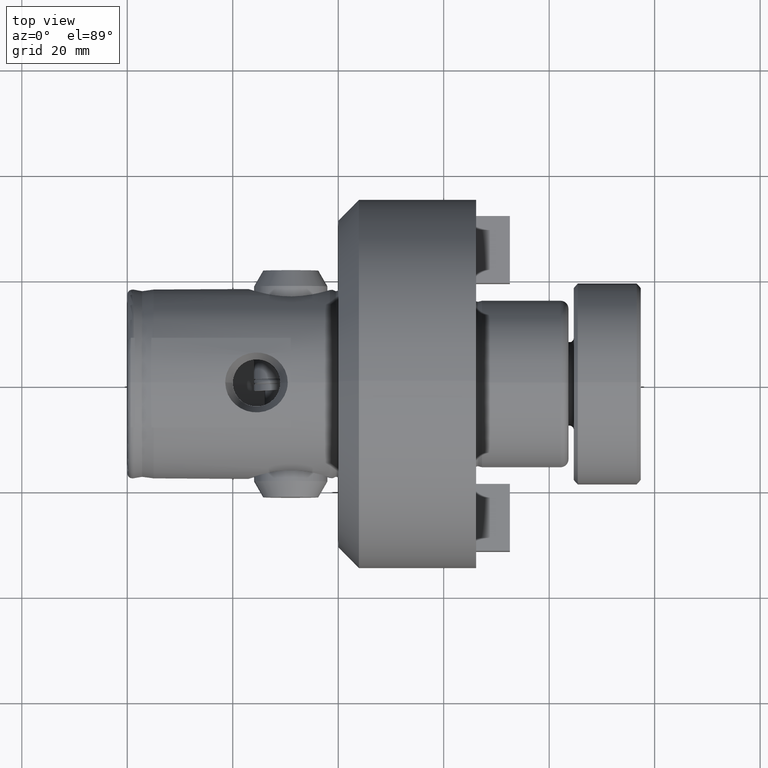
[diagram: clean part render]
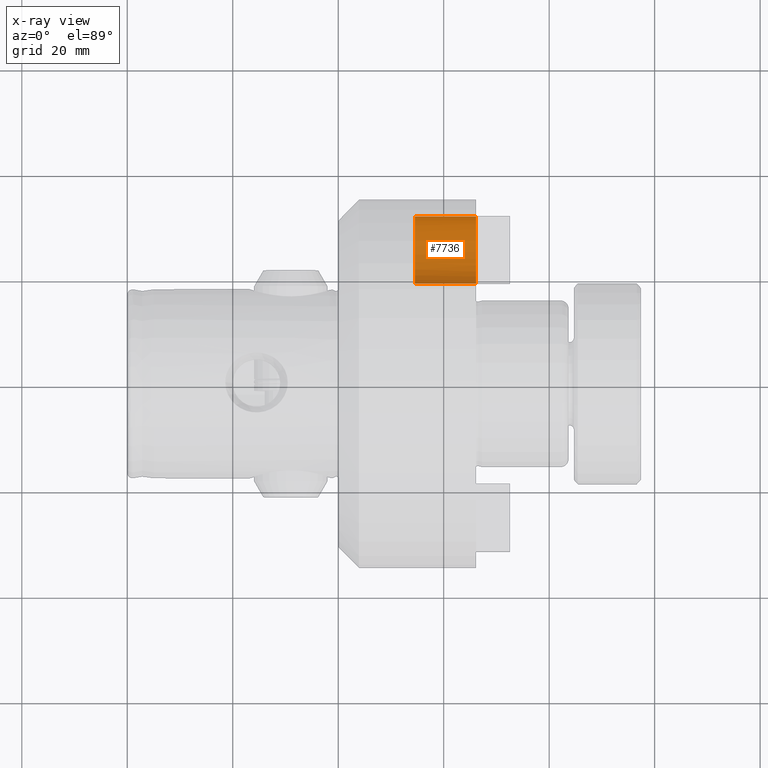
[diagram: x-ray — body ghosted, one internal face saturated and labeled with its STEP entity id]
A machine part, top view, then the same camera in x-ray: the body is ghosted and one INTERNAL B-rep face — a face not visible from any outside direction — is saturated and labeled: STEP entity #7736.
In plain terms, the highlighted cylindrical surface (edge-blend (fillet) strip) has radius 6.3538 mm, axis along (1, -0, 0).
Its self-contained STEP definition (entity closure, byte-faithful):
#33 = ORIENTED_EDGE ( 'NONE', *, *, #8296, .F. ) ;
#367 = ORIENTED_EDGE ( 'NONE', *, *, #2696, .F. ) ;
#423 = AXIS2_PLACEMENT_3D ( 'NONE', #2714, #7398, #662 ) ;
#500 = VECTOR ( 'NONE', #3384, 1000.000000000000000 ) ;
#662 = DIRECTION ( 'NONE',  ( 0.0000000000000000000, 0.0000000000000000000, -1.000000000000000000 ) ) ;
#818 = CARTESIAN_POINT ( 'NONE',  ( 0.0000000000000000000, 6.349999999999999600, 0.07333448188494989800 ) ) ;
#997 = VERTEX_POINT ( 'NONE', #4131 ) ;
#1070 = DIRECTION ( 'NONE',  ( 0.0000000000000000000, 0.0000000000000000000, -1.000000000000000000 ) ) ;
#1111 = CARTESIAN_POINT ( 'NONE',  ( 0.0000000000000000000, 0.2200034456548826400, 6.349999999999998800 ) ) ;
#1304 = AXIS2_PLACEMENT_3D ( 'NONE', #5554, #6228, #2196 ) ;
#1333 = VERTEX_POINT ( 'NONE', #5748 ) ;
#1340 = CARTESIAN_POINT ( 'NONE',  ( 0.0000000000000000000, 0.07333448188493543700, -6.350000000000001400 ) ) ;
#1423 = CARTESIAN_POINT ( 'NONE',  ( 0.0000000000000000000, 6.349999999999999600, -0.2200034456548535800 ) ) ;
#1465 = AXIS2_PLACEMENT_3D ( 'NONE', #7080, #3758, #1070 ) ;
#1625 = CIRCLE ( 'NONE', #4684, 6.353810000000000200 ) ;
#2103 = EDGE_LOOP ( 'NONE', ( #5069, #8022, #367, #33, #5548, #2463, #5312, #6392 ) ) ;
#2196 = DIRECTION ( 'NONE',  ( 0.0000000000000000000, 0.0000000000000000000, -1.000000000000000000 ) ) ;
#2463 = ORIENTED_EDGE ( 'NONE', *, *, #3312, .F. ) ;
#2609 = B_SPLINE_CURVE_WITH_KNOTS ( 'NONE', 3,
 ( #4111, #4826, #818, #4798 ),
 .UNSPECIFIED., .F., .F.,
 ( 4, 4 ),
 ( 0.0000000000000000000, 1.000000000000000000 ),
 .UNSPECIFIED. ) ;
#2674 = VERTEX_POINT ( 'NONE', #8041 ) ;
#2696 = EDGE_CURVE ( 'NONE', #5825, #5606, #4153, .T. ) ;
#2714 = CARTESIAN_POINT ( 'NONE',  ( 0.0000000000000000000, 0.0000000000000000000, 0.0000000000000000000 ) ) ;
#2819 = VERTEX_POINT ( 'NONE', #1423 ) ;
#3073 = EDGE_CURVE ( 'NONE', #2819, #997, #2609, .T. ) ;
#3219 = LINE ( 'NONE', #5382, #500 ) ;
#3312 = EDGE_CURVE ( 'NONE', #4306, #2819, #5968, .T. ) ;
#3327 = DIRECTION ( 'NONE',  ( 1.000000000000000000, 0.0000000000000000000, 0.0000000000000000000 ) ) ;
#3384 = DIRECTION ( 'NONE',  ( 1.000000000000000000, 0.0000000000000000000, 0.0000000000000000000 ) ) ;
#3568 = DIRECTION ( 'NONE',  ( 0.0000000000000000000, 0.0000000000000000000, -1.000000000000000000 ) ) ;
#3758 = DIRECTION ( 'NONE',  ( 1.000000000000000000, 0.0000000000000000000, 0.0000000000000000000 ) ) ;
#3896 = CARTESIAN_POINT ( 'NONE',  ( 0.0000000000000000000, 0.2200034456548826400, 6.349999999999998800 ) ) ;
#3930 = CARTESIAN_POINT ( 'NONE',  ( 0.0000000000000000000, 0.1466689637699220300, 6.349999999999998800 ) ) ;
#4068 = CARTESIAN_POINT ( 'NONE',  ( -11.60223969504521300, 0.0000000000000000000, -6.353810000000000200 ) ) ;
#4111 = CARTESIAN_POINT ( 'NONE',  ( 0.0000000000000000000, 6.349999999999999600, -0.2200034456548535800 ) ) ;
#4131 = CARTESIAN_POINT ( 'NONE',  ( 0.0000000000000000000, 6.349999999999999600, 0.2200034456548518300 ) ) ;
#4153 = B_SPLINE_CURVE_WITH_KNOTS ( 'NONE', 3,
 ( #3896, #3930, #7341, #8642 ),
 .UNSPECIFIED., .F., .F.,
 ( 4, 4 ),
 ( 0.0000000000000000000, 0.4999999999999962800 ),
 .UNSPECIFIED. ) ;
#4306 = VERTEX_POINT ( 'NONE', #7247 ) ;
#4631 = LINE ( 'NONE', #5380, #8380 ) ;
#4684 = AXIS2_PLACEMENT_3D ( 'NONE', #5648, #7586, #3568 ) ;
#4798 = CARTESIAN_POINT ( 'NONE',  ( 0.0000000000000000000, 6.349999999999999600, 0.2200034456548518300 ) ) ;
#4819 = CARTESIAN_POINT ( 'NONE',  ( 0.0000000000000000000, 0.1466689637698717400, -6.350000000000001400 ) ) ;
#4826 = CARTESIAN_POINT ( 'NONE',  ( 0.0000000000000000000, 6.349999999999999600, -0.07333448188495163300 ) ) ;
#5069 = ORIENTED_EDGE ( 'NONE', *, *, #6811, .T. ) ;
#5312 = ORIENTED_EDGE ( 'NONE', *, *, #5567, .F. ) ;
#5380 = CARTESIAN_POINT ( 'NONE',  ( -13.66520000000000000, 0.0000000000000000000, -6.353810000000000200 ) ) ;
#5382 = CARTESIAN_POINT ( 'NONE',  ( -13.66520000000000000, 7.781173078890445100E-016, 6.353810000000000200 ) ) ;
#5444 = B_SPLINE_CURVE_WITH_KNOTS ( 'NONE', 3,
 ( #6662, #1340, #4819, #5489 ),
 .UNSPECIFIED., .F., .F.,
 ( 4, 4 ),
 ( 0.4999999999999940600, 1.000000000000000000 ),
 .UNSPECIFIED. ) ;
#5456 = EDGE_CURVE ( 'NONE', #1333, #5606, #3219, .T. ) ;
#5486 = CIRCLE ( 'NONE', #423, 6.353810000000000200 ) ;
#5489 = CARTESIAN_POINT ( 'NONE',  ( 0.0000000000000000000, 0.2200034456548082600, -6.350000000000001400 ) ) ;
#5548 = ORIENTED_EDGE ( 'NONE', *, *, #3073, .F. ) ;
#5554 = CARTESIAN_POINT ( 'NONE',  ( -13.66520000000000000, 0.0000000000000000000, 0.0000000000000000000 ) ) ;
#5567 = EDGE_CURVE ( 'NONE', #2674, #4306, #5444, .T. ) ;
#5606 = VERTEX_POINT ( 'NONE', #7481 ) ;
#5648 = CARTESIAN_POINT ( 'NONE',  ( -11.60223969504521300, 0.0000000000000000000, 0.0000000000000000000 ) ) ;
#5748 = CARTESIAN_POINT ( 'NONE',  ( -11.60223969504521300, 7.781173078890445100E-016, 6.353810000000000200 ) ) ;
#5801 = CYLINDRICAL_SURFACE ( 'NONE', #1304, 6.353810000000000200 ) ;
#5825 = VERTEX_POINT ( 'NONE', #1111 ) ;
#5968 = CIRCLE ( 'NONE', #1465, 6.353810000000000200 ) ;
#6228 = DIRECTION ( 'NONE',  ( 1.000000000000000000, 0.0000000000000000000, 0.0000000000000000000 ) ) ;
#6392 = ORIENTED_EDGE ( 'NONE', *, *, #8336, .F. ) ;
#6662 = CARTESIAN_POINT ( 'NONE',  ( 0.0000000000000000000, -8.745650037500495400E-016, -6.351905000000001200 ) ) ;
#6774 = VERTEX_POINT ( 'NONE', #4068 ) ;
#6811 = EDGE_CURVE ( 'NONE', #6774, #1333, #1625, .T. ) ;
#6860 = FACE_OUTER_BOUND ( 'NONE', #2103, .T. ) ;
#7080 = CARTESIAN_POINT ( 'NONE',  ( 0.0000000000000000000, 0.0000000000000000000, 0.0000000000000000000 ) ) ;
#7247 = CARTESIAN_POINT ( 'NONE',  ( 0.0000000000000000000, 0.2200034456548082600, -6.350000000000001400 ) ) ;
#7341 = CARTESIAN_POINT ( 'NONE',  ( 0.0000000000000000000, 0.07333448188496152800, 6.349999999999998800 ) ) ;
#7398 = DIRECTION ( 'NONE',  ( 1.000000000000000000, 0.0000000000000000000, 0.0000000000000000000 ) ) ;
#7481 = CARTESIAN_POINT ( 'NONE',  ( -8.673617379884035500E-016, 8.227395229387240300E-016, 6.351904999999999500 ) ) ;
#7586 = DIRECTION ( 'NONE',  ( 1.000000000000000000, -0.0000000000000000000, -0.0000000000000000000 ) ) ;
#7736 = ADVANCED_FACE ( 'NONE', ( #6860 ), #5801, .T. ) ;
#8022 = ORIENTED_EDGE ( 'NONE', *, *, #5456, .T. ) ;
#8041 = CARTESIAN_POINT ( 'NONE',  ( 0.0000000000000000000, -8.745650037500495400E-016, -6.351905000000001200 ) ) ;
#8296 = EDGE_CURVE ( 'NONE', #997, #5825, #5486, .T. ) ;
#8336 = EDGE_CURVE ( 'NONE', #6774, #2674, #4631, .T. ) ;
#8380 = VECTOR ( 'NONE', #3327, 1000.000000000000000 ) ;
#8642 = CARTESIAN_POINT ( 'NONE',  ( -8.673617379884035500E-016, 8.227395229387240300E-016, 6.351904999999999500 ) ) ;